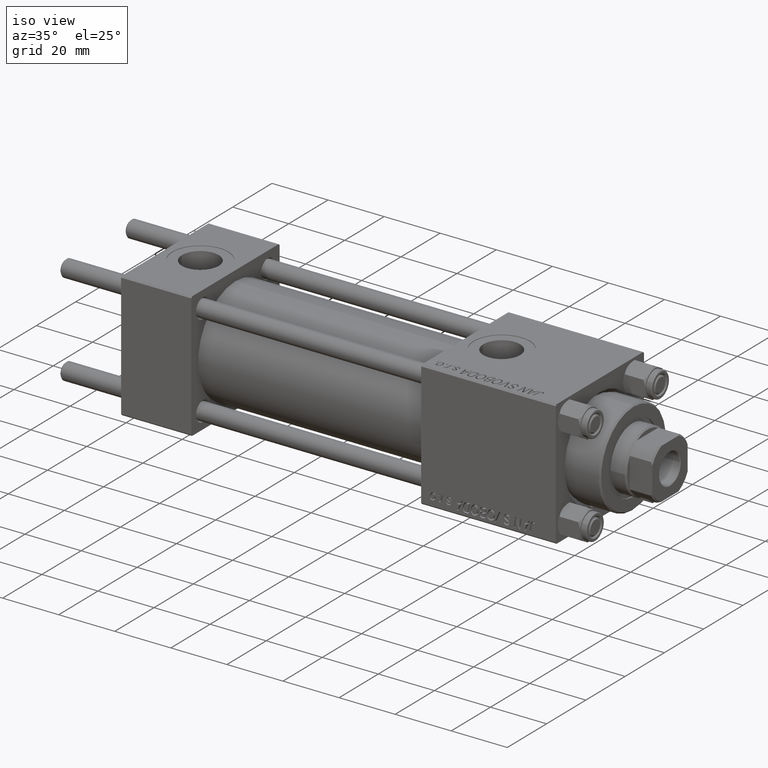
[diagram: clean part render]
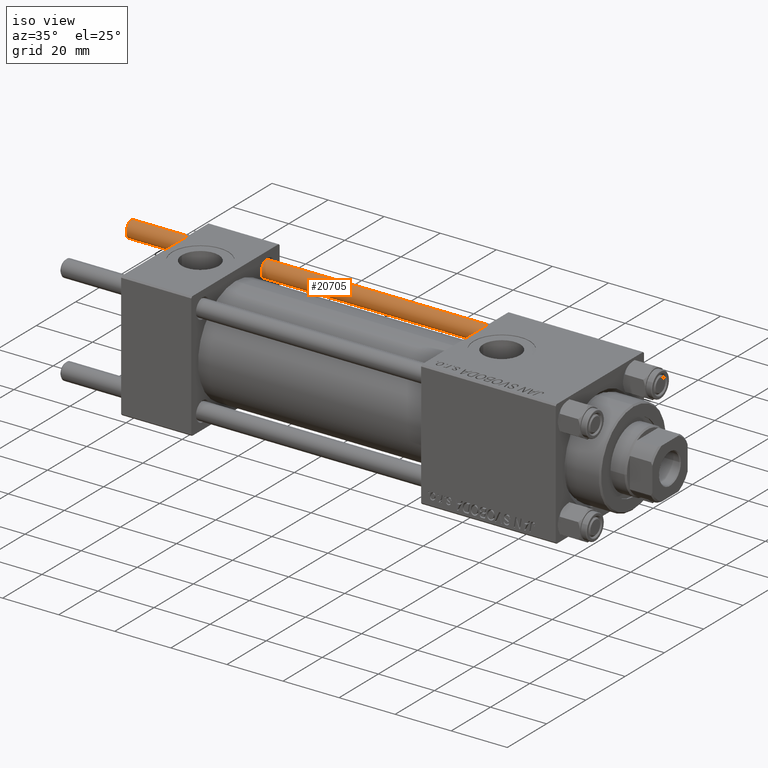
[diagram: same view with one face highlighted and labeled with its STEP entity id]
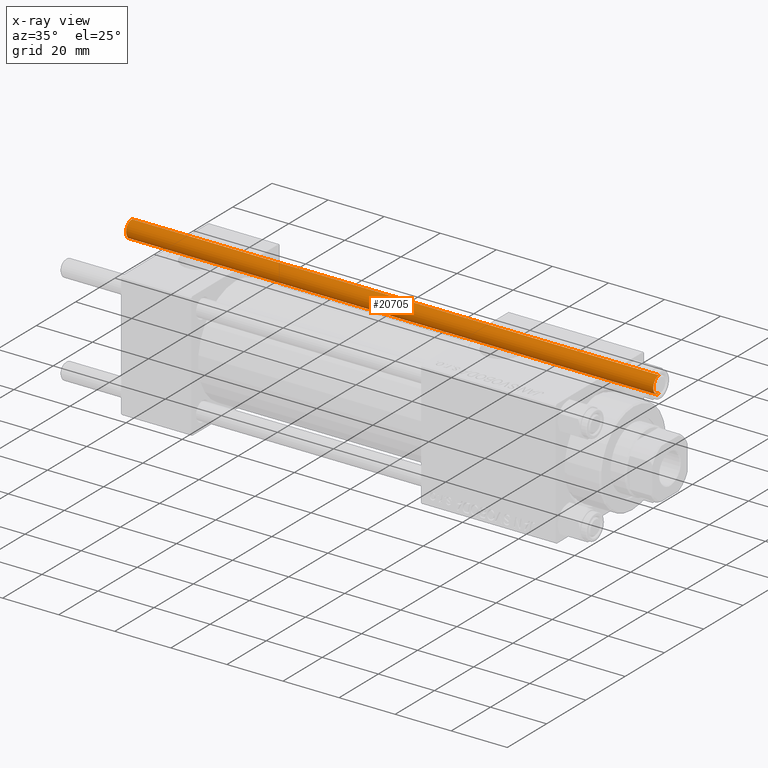
[diagram: x-ray of the same camera — body ghosted, the highlighted face saturated]
A machine part, iso view. The second image highlights one B-rep face of the part: STEP entity #20705.
The next image is the same camera in x-ray: the body ghosted, the highlighted face saturated — about 0% of this face is hidden behind the body in this view.
In plain terms, the highlighted cylindrical surface (edge-blend (fillet) strip) has radius 3 mm, axis along (-1, -0, -0).
Its self-contained STEP definition (entity closure, byte-faithful):
#3462 = VERTEX_POINT ( 'NONE', #12357 ) ;
#3699 = DIRECTION ( 'NONE',  ( 0.000000000000000000, 0.000000000000000000, -1.000000000000000000 ) ) ;
#7371 = CARTESIAN_POINT ( 'NONE',  ( 0.000000000000000000, 0.000000000000000000, 0.5000000000000004441 ) ) ;
#11946 = AXIS2_PLACEMENT_3D ( 'NONE', #33963, #3699, #19104 ) ;
#12357 = CARTESIAN_POINT ( 'NONE',  ( 3.000000000000000444, 3.673940397442060361E-16, 0.5000000000000004441 ) ) ;
#13078 = EDGE_CURVE ( 'NONE', #14205, #3462, #17227, .T. ) ;
#14149 = FACE_OUTER_BOUND ( 'NONE', #33163, .T. ) ;
#14205 = VERTEX_POINT ( 'NONE', #14424 ) ;
#14424 = CARTESIAN_POINT ( 'NONE',  ( 3.000000000000000444, 3.673940397442060361E-16, 188.5000000000000284 ) ) ;
#15988 = CIRCLE ( 'NONE', #11946, 3.000000000000000444 ) ;
#16230 = ORIENTED_EDGE ( 'NONE', *, *, #26397, .T. ) ;
#16856 = DIRECTION ( 'NONE',  ( -0.000000000000000000, -0.000000000000000000, -1.000000000000000000 ) ) ;
#17227 = LINE ( 'NONE', #32091, #48680 ) ;
#17456 = DIRECTION ( 'NONE',  ( -0.000000000000000000, -0.000000000000000000, -1.000000000000000000 ) ) ;
#18242 = DIRECTION ( 'NONE',  ( -0.000000000000000000, -0.000000000000000000, 1.000000000000000000 ) ) ;
#19104 = DIRECTION ( 'NONE',  ( 1.000000000000000000, 0.000000000000000000, 0.000000000000000000 ) ) ;
#20705 = ADVANCED_FACE ( 'NONE', ( #14149 ), #44657, .T. ) ;
#20859 = ORIENTED_EDGE ( 'NONE', *, *, #13078, .F. ) ;
#22376 = ORIENTED_EDGE ( 'NONE', *, *, #46407, .T. ) ;
#23236 = CIRCLE ( 'NONE', #49837, 3.000000000000000444 ) ;
#25199 = EDGE_CURVE ( 'NONE', #14205, #32391, #15988, .T. ) ;
#25630 = VERTEX_POINT ( 'NONE', #38932 ) ;
#26397 = EDGE_CURVE ( 'NONE', #25630, #3462, #23236, .T. ) ;
#26417 = ORIENTED_EDGE ( 'NONE', *, *, #25199, .T. ) ;
#30578 = CARTESIAN_POINT ( 'NONE',  ( -3.000000000000000444, 0.000000000000000000, 188.5000000000000284 ) ) ;
#32091 = CARTESIAN_POINT ( 'NONE',  ( 3.000000000000000444, 3.673940397442060361E-16, 189.0000000000000000 ) ) ;
#32391 = VERTEX_POINT ( 'NONE', #30578 ) ;
#33163 = EDGE_LOOP ( 'NONE', ( #20859, #26417, #22376, #16230 ) ) ;
#33207 = LINE ( 'NONE', #48584, #39309 ) ;
#33850 = DIRECTION ( 'NONE',  ( 1.000000000000000000, 0.000000000000000000, 0.000000000000000000 ) ) ;
#33963 = CARTESIAN_POINT ( 'NONE',  ( 0.000000000000000000, 0.000000000000000000, 188.5000000000000284 ) ) ;
#35933 = AXIS2_PLACEMENT_3D ( 'NONE', #36599, #17456, #40869 ) ;
#36599 = CARTESIAN_POINT ( 'NONE',  ( 0.000000000000000000, 0.000000000000000000, 189.0000000000000000 ) ) ;
#38932 = CARTESIAN_POINT ( 'NONE',  ( -3.000000000000000444, 0.000000000000000000, 0.5000000000000004441 ) ) ;
#39309 = VECTOR ( 'NONE', #16856, 1000.000000000000000 ) ;
#39896 = DIRECTION ( 'NONE',  ( -0.000000000000000000, -0.000000000000000000, -1.000000000000000000 ) ) ;
#40869 = DIRECTION ( 'NONE',  ( -1.000000000000000000, 0.000000000000000000, 0.000000000000000000 ) ) ;
#44657 = CYLINDRICAL_SURFACE ( 'NONE', #35933, 3.000000000000000444 ) ;
#46407 = EDGE_CURVE ( 'NONE', #32391, #25630, #33207, .T. ) ;
#48584 = CARTESIAN_POINT ( 'NONE',  ( -3.000000000000000444, 0.000000000000000000, 189.0000000000000000 ) ) ;
#48680 = VECTOR ( 'NONE', #39896, 1000.000000000000000 ) ;
#49837 = AXIS2_PLACEMENT_3D ( 'NONE', #7371, #18242, #33850 ) ;